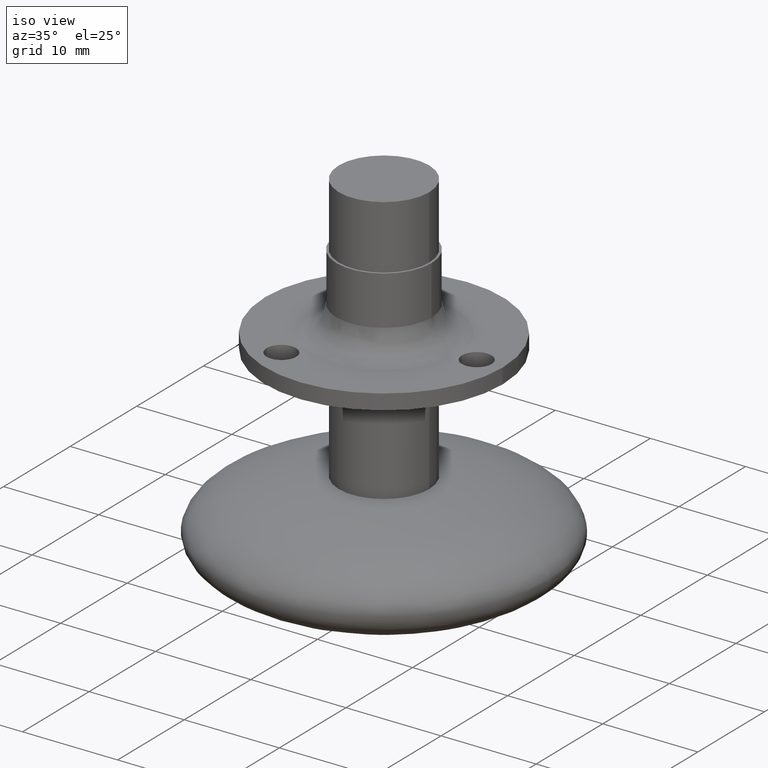
[diagram: clean part render]
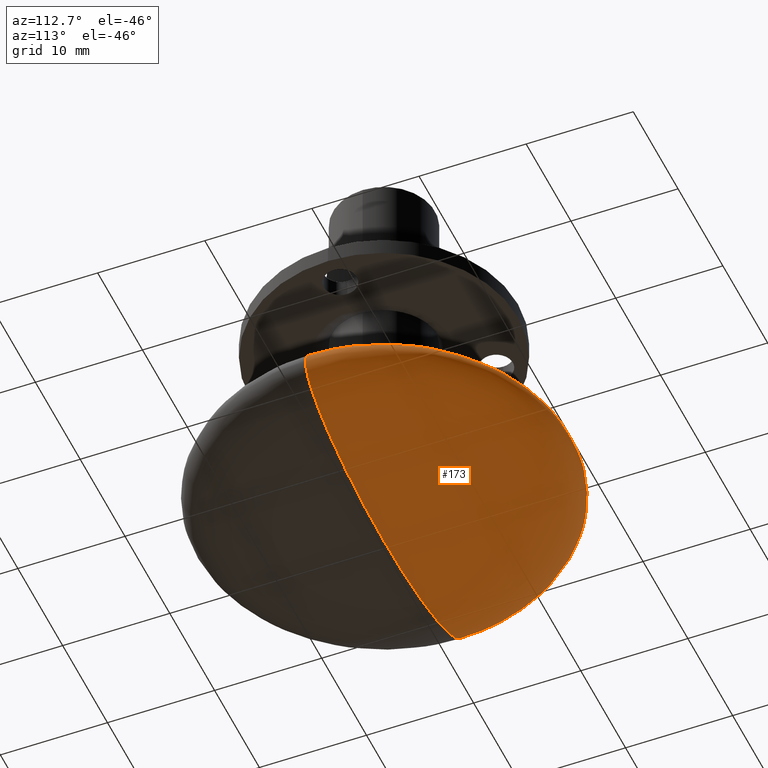
[diagram: tour spotlight — one face highlighted and labeled with its STEP entity id]
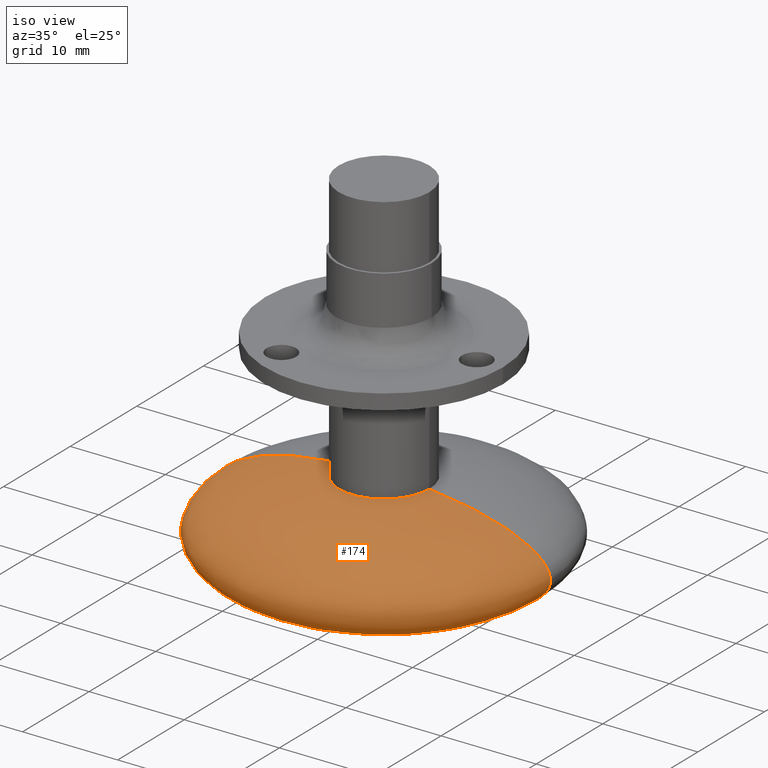
[diagram: tour spotlight — one face highlighted and labeled with its STEP entity id]
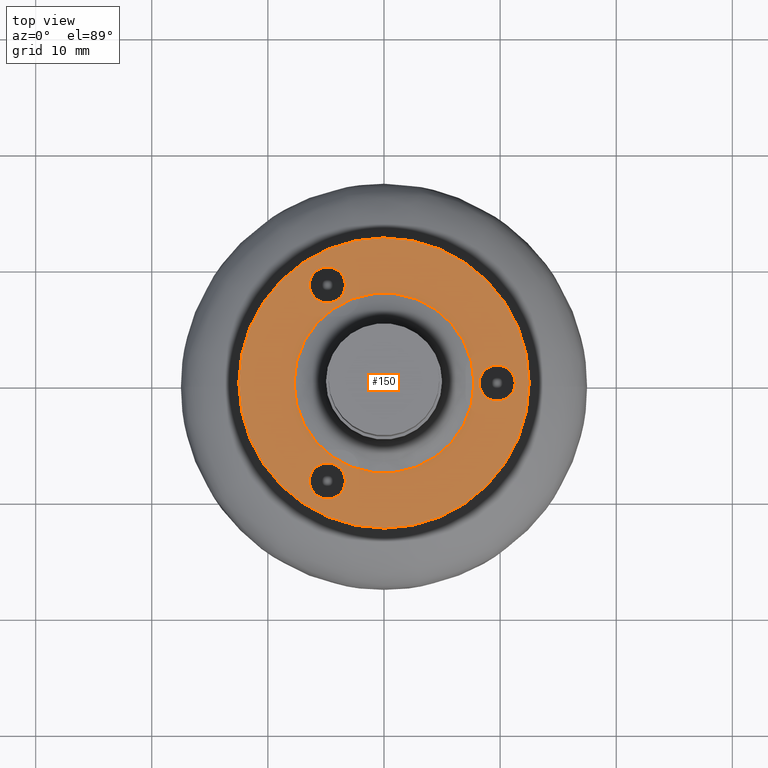
[diagram: tour spotlight — one face highlighted and labeled with its STEP entity id]
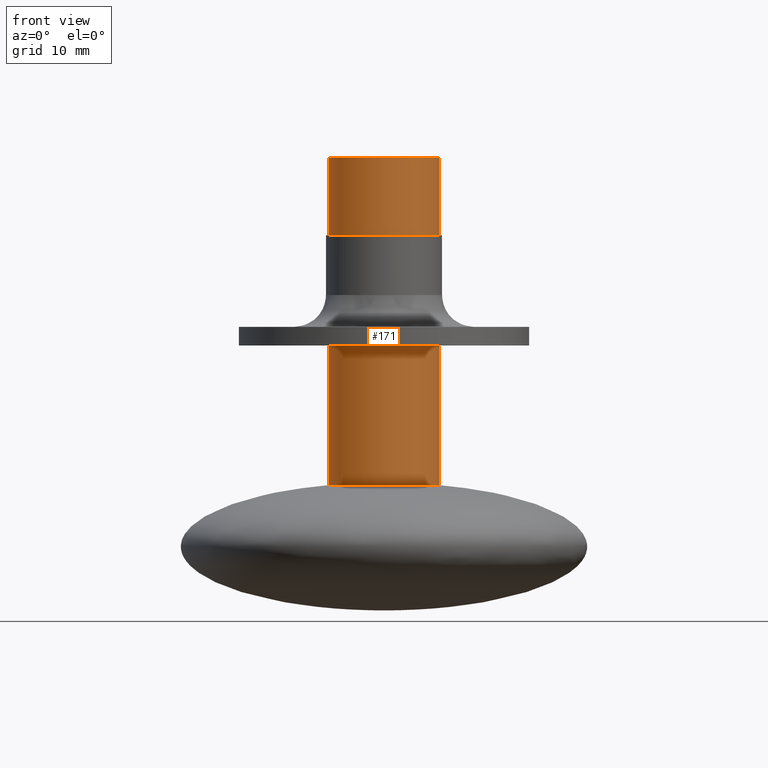
[diagram: tour spotlight — one face highlighted and labeled with its STEP entity id]
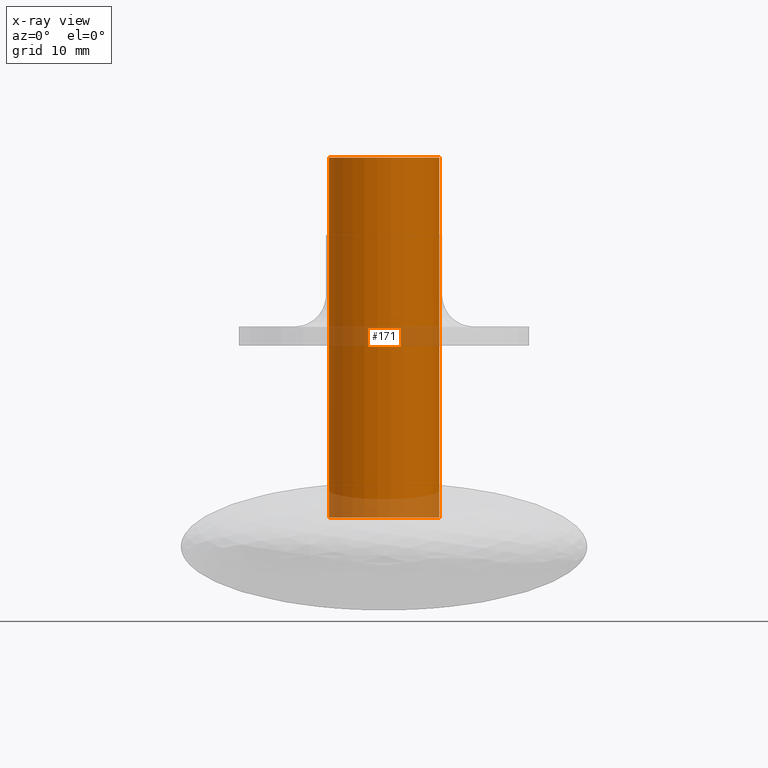
[diagram: x-ray of the same camera — body ghosted, this tour face saturated]
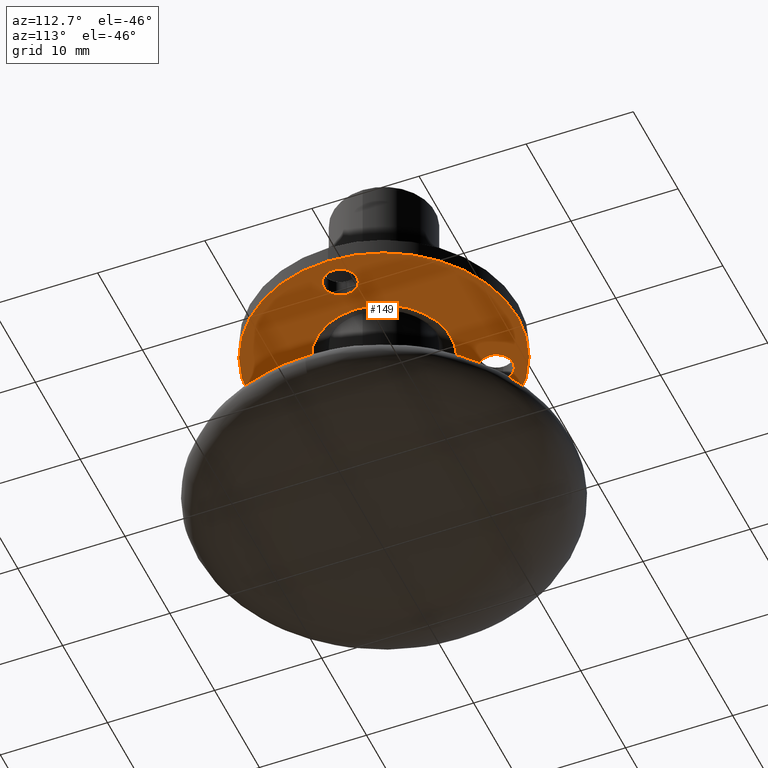
[diagram: tour spotlight — one face highlighted and labeled with its STEP entity id]
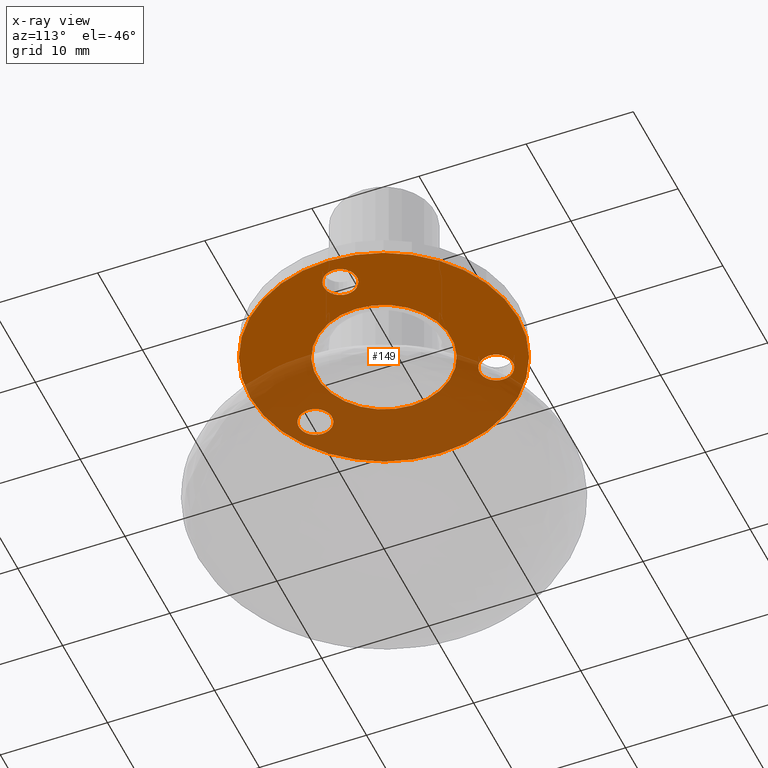
[diagram: x-ray of the same camera — body ghosted, this tour face saturated]
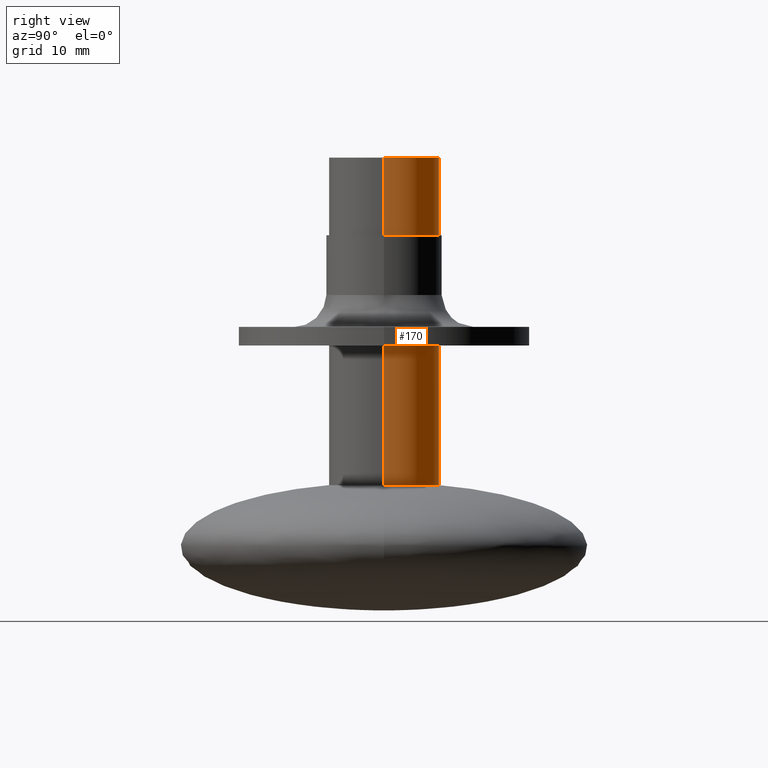
[diagram: tour spotlight — one face highlighted and labeled with its STEP entity id]
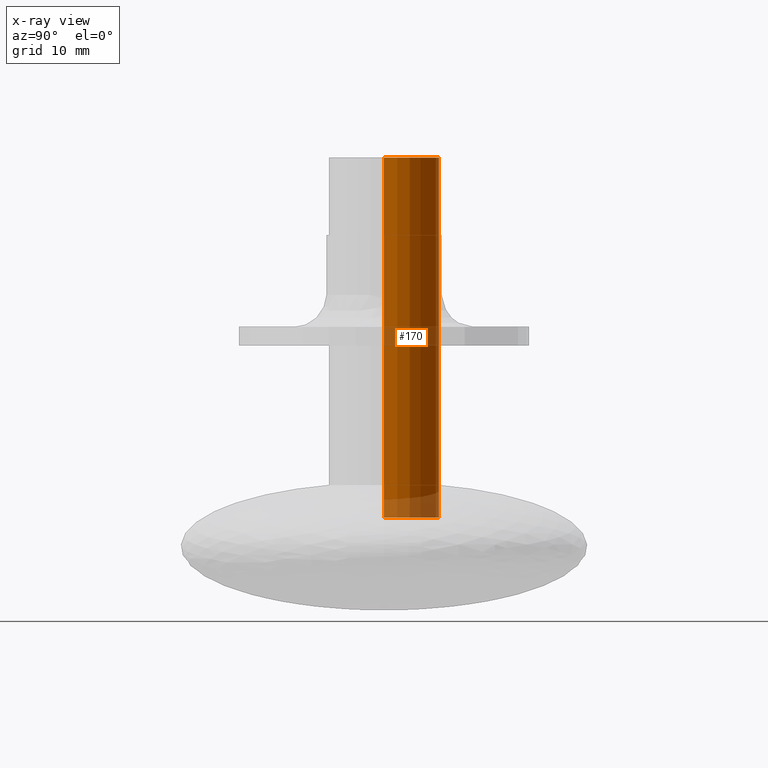
[diagram: x-ray of the same camera — body ghosted, this tour face saturated]
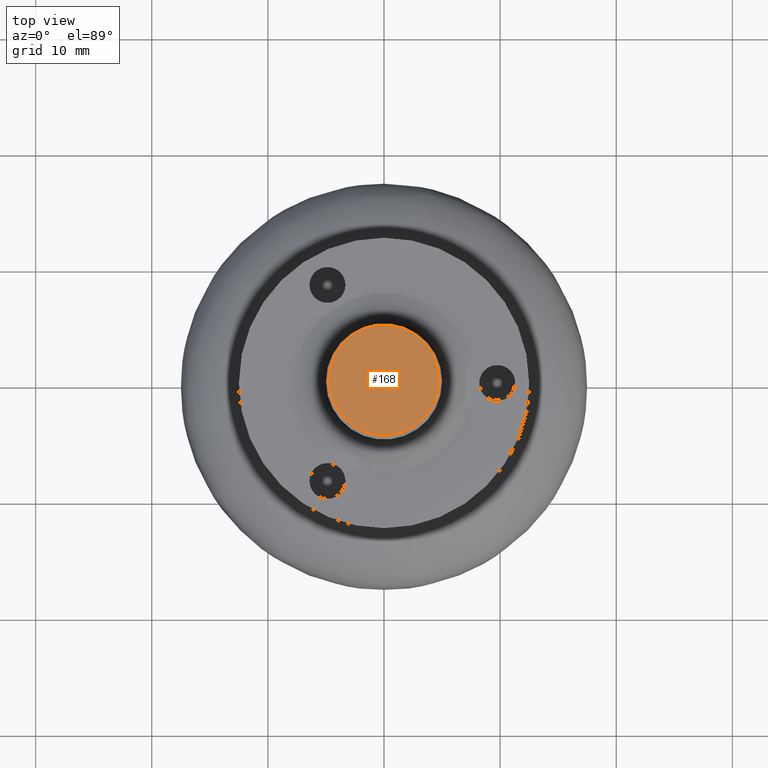
[diagram: tour spotlight — one face highlighted and labeled with its STEP entity id]
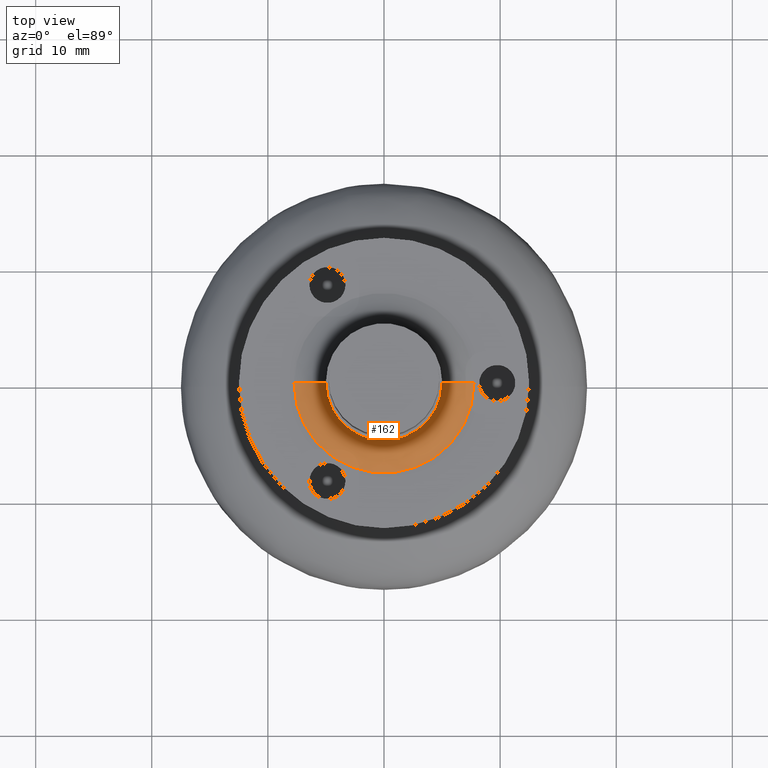
[diagram: tour spotlight — one face highlighted and labeled with its STEP entity id]
A machine part: a face-by-face anatomy tour. The part has 28 B-rep faces; the first image is the clean iso view, then the 8 largest visible faces are spotlighted one at a time (largest first), each with its STEP entity span.

Face 1 — auxiliary view, entity #173. In plain terms, the highlighted face is a freeform B-spline surface patch.
Definition (entity closure, byte-faithful):
#173=ADVANCED_FACE('',(#427),#426,.F.);
#426=( BOUNDED_SURFACE() B_SPLINE_SURFACE( 2,2,((#679,#680,#681,#682,#683),(#684,#685,#686,#687,#688),(#689,#690,#691,#692,#693),(#694,#695,#696,#697,#698),(#699,#700,#701,#702,#703)), .UNSPECIFIED.,.F.,.F.,.F.) B_SPLINE_SURFACE_WITH_KNOTS((3,2,3),(3,2,3),(4.98800822050E+00,6.26703740133E+00,7.85398163397E+00),(0.00000000000E+00,1.57079632679E+00,3.14159265359E+00), .UNSPECIFIED. ) GEOMETRIC_REPRESENTATION_ITEM() RATIONAL_B_SPLINE_SURFACE(((1.00000000000E+00,7.07106781187E-01,1.00000000000E+00,7.07106781187E-01,1.00000000000E+00),(7.54113331129E-01,5.33238650225E-01,7.54113331129E-01,5.33238650225E-01,7.54113331129E-01),(1.00000000000E+00,7.07106781187E-01,1.00000000000E+00,7.07106781187E-01,1.00000000000E+00),(7.54113331129E-01,5.33238650225E-01,7.54113331129E-01,5.33238650225E-01,7.54113331129E-01),(1.00000000000E+00,7.07106781187E-01,1.00000000000E+00,7.07106781187E-01,1.00000000000E+00))) REPRESENTATION_ITEM('') SURFACE() );
#427=FACE_OUTER_BOUND('',#704,.T.);
#679=CARTESIAN_POINT('',(-4.76250000000E+00,0.00000000000E+00,-2.82075872680E+01));
#680=CARTESIAN_POINT('',(-4.76250000000E+00,4.76250000000E+00,-2.82075872680E+01));
#681=CARTESIAN_POINT('',(0.00000000000E+00,4.76250000000E+00,-2.82075872680E+01));
#682=CARTESIAN_POINT('',(4.76250000000E+00,4.76250000000E+00,-2.82075872680E+01));
#683=CARTESIAN_POINT('',(4.76250000000E+00,0.00000000000E+00,-2.82075872680E+01));
#684=CARTESIAN_POINT('',(-1.94277260901E+01,0.00000000000E+00,-2.95111121561E+01));
#685=CARTESIAN_POINT('',(-1.94277260901E+01,1.94277260901E+01,-2.95111121561E+01));
#686=CARTESIAN_POINT('',(0.00000000000E+00,1.94277260901E+01,-2.95111121561E+01));
#687=CARTESIAN_POINT('',(1.94277260901E+01,1.94277260901E+01,-2.95111121561E+01));
#688=CARTESIAN_POINT('',(1.94277260901E+01,0.00000000000E+00,-2.95111121561E+01));
#689=CARTESIAN_POINT('',(-1.73340872775E+01,0.00000000000E+00,-3.42555560781E+01));
#690=CARTESIAN_POINT('',(-1.73340872775E+01,1.73340872775E+01,-3.42555560781E+01));
#691=CARTESIAN_POINT('',(0.00000000000E+00,1.73340872775E+01,-3.42555560781E+01));
#692=CARTESIAN_POINT('',(1.73340872775E+01,1.73340872775E+01,-3.42555560781E+01));
#693=CARTESIAN_POINT('',(1.73340872775E+01,0.00000000000E+00,-3.42555560781E+01));
#694=CARTESIAN_POINT('',(-1.52404484648E+01,0.00000000000E+00,-3.90000000000E+01));
#695=CARTESIAN_POINT('',(-1.52404484648E+01,1.52404484648E+01,-3.90000000000E+01));
#696=CARTESIAN_POINT('',(0.00000000000E+00,1.52404484648E+01,-3.90000000000E+01));
#697=CARTESIAN_POINT('',(1.52404484648E+01,1.52404484648E+01,-3.90000000000E+01));
#698=CARTESIAN_POINT('',(1.52404484648E+01,0.00000000000E+00,-3.90000000000E+01));
#699=CARTESIAN_POINT('',(-5.26605533268E-14,0.00000000000E+00,-3.90000000000E+01));
#700=CARTESIAN_POINT('',(-5.26605533268E-14,5.26605533268E-14,-3.90000000000E+01));
#701=CARTESIAN_POINT('',(0.00000000000E+00,5.26605533268E-14,-3.90000000000E+01));
#702=CARTESIAN_POINT('',(5.26605533268E-14,5.26605533268E-14,-3.90000000000E+01));
#703=CARTESIAN_POINT('',(5.26605533268E-14,0.00000000000E+00,-3.90000000000E+01));
#704=EDGE_LOOP('',(#843,#844,#845));
#843=ORIENTED_EDGE('',*,*,#909,.F.);
#844=ORIENTED_EDGE('',*,*,#910,.T.);
#845=ORIENTED_EDGE('',*,*,#911,.T.);
#909=EDGE_CURVE('',#1261,#1262,#1263,.T.);
#910=EDGE_CURVE('',#1261,#1269,#1270,.T.);
#911=EDGE_CURVE('',#1269,#1262,#1276,.T.);
#1261=VERTEX_POINT('',#1510);
#1262=VERTEX_POINT('',#1511);
#1263=(BOUNDED_CURVE() B_SPLINE_CURVE(2,(#1512,#1513,#1514,#1515,#1516),.UNSPECIFIED.,.F.,.F.) B_SPLINE_CURVE_WITH_KNOTS((3,2,3),(-1.29517708668E+00,-1.61479058479E-02,1.57079632679E+00),.UNSPECIFIED.) CURVE() GEOMETRIC_REPRESENTATION_ITEM() RATIONAL_B_SPLINE_CURVE((1.00000000000E+00,7.54113331129E-01,1.00000000000E+00,7.54113331129E-01,1.00000000000E+00)) REPRESENTATION_ITEM('') );
#1269=VERTEX_POINT('',#1517);
#1270=CIRCLE('',#1521,4.76250000000E+00);
#1276=(BOUNDED_CURVE() B_SPLINE_CURVE(2,(#1522,#1523,#1524,#1525,#1526),.UNSPECIFIED.,.F.,.F.) B_SPLINE_CURVE_WITH_KNOTS((3,2,3),(4.98800822050E+00,6.26703740133E+00,7.85398163397E+00),.UNSPECIFIED.) CURVE() GEOMETRIC_REPRESENTATION_ITEM() RATIONAL_B_SPLINE_CURVE((1.00000000000E+00,7.54113331129E-01,1.00000000000E+00,7.54113331129E-01,1.00000000000E+00)) REPRESENTATION_ITEM('') );
#1510=CARTESIAN_POINT('',(-4.76250000000E+00,0.00000000000E+00,-2.82075872680E+01));
#1511=CARTESIAN_POINT('',(0.00000000000E+00,0.00000000000E+00,-3.90000000000E+01));
#1512=CARTESIAN_POINT('',(-4.76250000000E+00,0.00000000000E+00,-2.82075872680E+01));
#1513=CARTESIAN_POINT('',(-1.94277260901E+01,0.00000000000E+00,-2.95111121561E+01));
#1514=CARTESIAN_POINT('',(-1.73340872775E+01,0.00000000000E+00,-3.42555560781E+01));
#1515=CARTESIAN_POINT('',(-1.52404484648E+01,0.00000000000E+00,-3.90000000000E+01));
#1516=CARTESIAN_POINT('',(-1.74506405420E-15,0.00000000000E+00,-3.90000000000E+01));
#1517=CARTESIAN_POINT('',(4.76250000000E+00,2.96059473233E-16,-2.82075872680E+01));
#1518=CARTESIAN_POINT('',(0.00000000000E+00,0.00000000000E+00,-2.82075872680E+01));
#1519=DIRECTION('',(-0.00000000000E+00,0.00000000000E+00,-1.00000000000E+00));
#1520=DIRECTION('',(-1.00000000000E+00,-1.22460635382E-16,0.00000000000E+00));
#1521=AXIS2_PLACEMENT_3D('',#1518,#1519,#1520);
#1522=CARTESIAN_POINT('',(4.76250000000E+00,0.00000000000E+00,-2.82075872680E+01));
#1523=CARTESIAN_POINT('',(1.94277260901E+01,0.00000000000E+00,-2.95111121561E+01));
#1524=CARTESIAN_POINT('',(1.73340872775E+01,0.00000000000E+00,-3.42555560781E+01));
#1525=CARTESIAN_POINT('',(1.52404484648E+01,0.00000000000E+00,-3.90000000000E+01));
#1526=CARTESIAN_POINT('',(5.26605533268E-14,0.00000000000E+00,-3.90000000000E+01));

Face 2 — iso view, entity #174. In plain terms, the highlighted face is a freeform B-spline surface patch.
Definition (entity closure, byte-faithful):
#174=ADVANCED_FACE('',(#437),#436,.F.);
#436=( BOUNDED_SURFACE() B_SPLINE_SURFACE( 2,2,((#705,#706,#707,#708,#709),(#710,#711,#712,#713,#714),(#715,#716,#717,#718,#719),(#720,#721,#722,#723,#724),(#725,#726,#727,#728,#729)), .UNSPECIFIED.,.F.,.F.,.F.) B_SPLINE_SURFACE_WITH_KNOTS((3,2,3),(3,2,3),(4.98800822050E+00,6.26703740133E+00,7.85398163397E+00),(3.14159265359E+00,4.71238898038E+00,6.28318530718E+00), .UNSPECIFIED. ) GEOMETRIC_REPRESENTATION_ITEM() RATIONAL_B_SPLINE_SURFACE(((1.00000000000E+00,7.07106781187E-01,1.00000000000E+00,7.07106781187E-01,1.00000000000E+00),(7.54113331129E-01,5.33238650225E-01,7.54113331129E-01,5.33238650225E-01,7.54113331129E-01),(1.00000000000E+00,7.07106781187E-01,1.00000000000E+00,7.07106781187E-01,1.00000000000E+00),(7.54113331129E-01,5.33238650225E-01,7.54113331129E-01,5.33238650225E-01,7.54113331129E-01),(1.00000000000E+00,7.07106781187E-01,1.00000000000E+00,7.07106781187E-01,1.00000000000E+00))) REPRESENTATION_ITEM('') SURFACE() );
#437=FACE_OUTER_BOUND('',#730,.T.);
#705=CARTESIAN_POINT('',(4.76250000000E+00,0.00000000000E+00,-2.82075872680E+01));
#706=CARTESIAN_POINT('',(4.76250000000E+00,-4.76250000000E+00,-2.82075872680E+01));
#707=CARTESIAN_POINT('',(0.00000000000E+00,-4.76250000000E+00,-2.82075872680E+01));
#708=CARTESIAN_POINT('',(-4.76250000000E+00,-4.76250000000E+00,-2.82075872680E+01));
#709=CARTESIAN_POINT('',(-4.76250000000E+00,0.00000000000E+00,-2.82075872680E+01));
#710=CARTESIAN_POINT('',(1.94277260901E+01,0.00000000000E+00,-2.95111121561E+01));
#711=CARTESIAN_POINT('',(1.94277260901E+01,-1.94277260901E+01,-2.95111121561E+01));
#712=CARTESIAN_POINT('',(0.00000000000E+00,-1.94277260901E+01,-2.95111121561E+01));
#713=CARTESIAN_POINT('',(-1.94277260901E+01,-1.94277260901E+01,-2.95111121561E+01));
#714=CARTESIAN_POINT('',(-1.94277260901E+01,0.00000000000E+00,-2.95111121561E+01));
#715=CARTESIAN_POINT('',(1.73340872775E+01,0.00000000000E+00,-3.42555560781E+01));
#716=CARTESIAN_POINT('',(1.73340872775E+01,-1.73340872775E+01,-3.42555560781E+01));
#717=CARTESIAN_POINT('',(0.00000000000E+00,-1.73340872775E+01,-3.42555560781E+01));
#718=CARTESIAN_POINT('',(-1.73340872775E+01,-1.73340872775E+01,-3.42555560781E+01));
#719=CARTESIAN_POINT('',(-1.73340872775E+01,0.00000000000E+00,-3.42555560781E+01));
#720=CARTESIAN_POINT('',(1.52404484648E+01,0.00000000000E+00,-3.90000000000E+01));
#721=CARTESIAN_POINT('',(1.52404484648E+01,-1.52404484648E+01,-3.90000000000E+01));
#722=CARTESIAN_POINT('',(0.00000000000E+00,-1.52404484648E+01,-3.90000000000E+01));
#723=CARTESIAN_POINT('',(-1.52404484648E+01,-1.52404484648E+01,-3.90000000000E+01));
#724=CARTESIAN_POINT('',(-1.52404484648E+01,0.00000000000E+00,-3.90000000000E+01));
#725=CARTESIAN_POINT('',(5.26605533268E-14,0.00000000000E+00,-3.90000000000E+01));
#726=CARTESIAN_POINT('',(5.26605533268E-14,-5.26605533268E-14,-3.90000000000E+01));
#727=CARTESIAN_POINT('',(0.00000000000E+00,-5.26605533268E-14,-3.90000000000E+01));
#728=CARTESIAN_POINT('',(-5.26605533268E-14,-5.26605533268E-14,-3.90000000000E+01));
#729=CARTESIAN_POINT('',(-5.26605533268E-14,0.00000000000E+00,-3.90000000000E+01));
#730=EDGE_LOOP('',(#846,#847,#848));
#846=ORIENTED_EDGE('',*,*,#912,.T.);
#847=ORIENTED_EDGE('',*,*,#909,.T.);
#848=ORIENTED_EDGE('',*,*,#911,.F.);
#909=EDGE_CURVE('',#1261,#1262,#1263,.T.);
#911=EDGE_CURVE('',#1269,#1262,#1276,.T.);
#912=EDGE_CURVE('',#1269,#1261,#1282,.T.);
#1261=VERTEX_POINT('',#1510);
#1262=VERTEX_POINT('',#1511);
#1263=(BOUNDED_CURVE() B_SPLINE_CURVE(2,(#1512,#1513,#1514,#1515,#1516),.UNSPECIFIED.,.F.,.F.) B_SPLINE_CURVE_WITH_KNOTS((3,2,3),(-1.29517708668E+00,-1.61479058479E-02,1.57079632679E+00),.UNSPECIFIED.) CURVE() GEOMETRIC_REPRESENTATION_ITEM() RATIONAL_B_SPLINE_CURVE((1.00000000000E+00,7.54113331129E-01,1.00000000000E+00,7.54113331129E-01,1.00000000000E+00)) REPRESENTATION_ITEM('') );
#1269=VERTEX_POINT('',#1517);
#1276=(BOUNDED_CURVE() B_SPLINE_CURVE(2,(#1522,#1523,#1524,#1525,#1526),.UNSPECIFIED.,.F.,.F.) B_SPLINE_CURVE_WITH_KNOTS((3,2,3),(4.98800822050E+00,6.26703740133E+00,7.85398163397E+00),.UNSPECIFIED.) CURVE() GEOMETRIC_REPRESENTATION_ITEM() RATIONAL_B_SPLINE_CURVE((1.00000000000E+00,7.54113331129E-01,1.00000000000E+00,7.54113331129E-01,1.00000000000E+00)) REPRESENTATION_ITEM('') );
#1282=CIRCLE('',#1530,4.76250000000E+00);
#1510=CARTESIAN_POINT('',(-4.76250000000E+00,0.00000000000E+00,-2.82075872680E+01));
#1511=CARTESIAN_POINT('',(0.00000000000E+00,0.00000000000E+00,-3.90000000000E+01));
#1512=CARTESIAN_POINT('',(-4.76250000000E+00,0.00000000000E+00,-2.82075872680E+01));
#1513=CARTESIAN_POINT('',(-1.94277260901E+01,0.00000000000E+00,-2.95111121561E+01));
#1514=CARTESIAN_POINT('',(-1.73340872775E+01,0.00000000000E+00,-3.42555560781E+01));
#1515=CARTESIAN_POINT('',(-1.52404484648E+01,0.00000000000E+00,-3.90000000000E+01));
#1516=CARTESIAN_POINT('',(-1.74506405420E-15,0.00000000000E+00,-3.90000000000E+01));
#1517=CARTESIAN_POINT('',(4.76250000000E+00,2.96059473233E-16,-2.82075872680E+01));
#1522=CARTESIAN_POINT('',(4.76250000000E+00,0.00000000000E+00,-2.82075872680E+01));
#1523=CARTESIAN_POINT('',(1.94277260901E+01,0.00000000000E+00,-2.95111121561E+01));
#1524=CARTESIAN_POINT('',(1.73340872775E+01,0.00000000000E+00,-3.42555560781E+01));
#1525=CARTESIAN_POINT('',(1.52404484648E+01,0.00000000000E+00,-3.90000000000E+01));
#1526=CARTESIAN_POINT('',(5.26605533268E-14,0.00000000000E+00,-3.90000000000E+01));
#1527=CARTESIAN_POINT('',(0.00000000000E+00,0.00000000000E+00,-2.82075872680E+01));
#1528=DIRECTION('',(-0.00000000000E+00,0.00000000000E+00,-1.00000000000E+00));
#1529=DIRECTION('',(-1.00000000000E+00,-1.22460635382E-16,0.00000000000E+00));
#1530=AXIS2_PLACEMENT_3D('',#1527,#1528,#1529);

Face 3 — top view, entity #150. In plain terms, the highlighted planar face has unit normal (0, 0, 1).
Definition (entity closure, byte-faithful):
#150=ADVANCED_FACE('',(#192,#193,#194,#195,#196),#191,.T.);
#191=PLANE('',#478);
#192=FACE_OUTER_BOUND('',#479,.T.);
#193=FACE_BOUND('',#480,.T.);
#194=FACE_BOUND('',#481,.T.);
#195=FACE_BOUND('',#482,.T.);
#196=FACE_BOUND('',#483,.T.);
#475=CARTESIAN_POINT('',(-1.62500000000E+01,-2.59807621135E+01,-1.45847590000E+01));
#476=DIRECTION('',(0.00000000000E+00,0.00000000000E+00,1.00000000000E+00));
#477=DIRECTION('',(1.00000000000E+00,0.00000000000E+00,0.00000000000E+00));
#478=AXIS2_PLACEMENT_3D('',#475,#476,#477);
#479=EDGE_LOOP('',(#751,#752));
#480=EDGE_LOOP('',(#753,#754));
#481=EDGE_LOOP('',(#755,#756));
#482=EDGE_LOOP('',(#757,#758));
#483=EDGE_LOOP('',(#759,#760));
#751=ORIENTED_EDGE('',*,*,#867,.F.);
#752=ORIENTED_EDGE('',*,*,#868,.F.);
#753=ORIENTED_EDGE('',*,*,#869,.F.);
#754=ORIENTED_EDGE('',*,*,#870,.F.);
#755=ORIENTED_EDGE('',*,*,#871,.T.);
#756=ORIENTED_EDGE('',*,*,#872,.T.);
#757=ORIENTED_EDGE('',*,*,#873,.F.);
#758=ORIENTED_EDGE('',*,*,#874,.F.);
#759=ORIENTED_EDGE('',*,*,#875,.F.);
#760=ORIENTED_EDGE('',*,*,#876,.F.);
#867=EDGE_CURVE('',#985,#986,#987,.T.);
#868=EDGE_CURVE('',#986,#985,#993,.T.);
#869=EDGE_CURVE('',#999,#1000,#1001,.T.);
#870=EDGE_CURVE('',#1000,#999,#1007,.T.);
#871=EDGE_CURVE('',#1013,#1014,#1015,.T.);
#872=EDGE_CURVE('',#1014,#1013,#1021,.T.);
#873=EDGE_CURVE('',#1027,#1028,#1029,.T.);
#874=EDGE_CURVE('',#1028,#1027,#1035,.T.);
#875=EDGE_CURVE('',#1041,#1042,#1043,.T.);
#876=EDGE_CURVE('',#1042,#1041,#1049,.T.);
#985=VERTEX_POINT('',#1350);
#986=VERTEX_POINT('',#1351);
#987=CIRCLE('',#1355,1.25000000000E+01);
#993=CIRCLE('',#1359,1.25000000000E+01);
#999=VERTEX_POINT('',#1360);
#1000=VERTEX_POINT('',#1361);
#1001=CIRCLE('',#1365,1.55000000000E+00);
#1007=CIRCLE('',#1369,1.55000000000E+00);
#1013=VERTEX_POINT('',#1370);
#1014=VERTEX_POINT('',#1371);
#1015=CIRCLE('',#1375,7.75000000000E+00);
#1021=CIRCLE('',#1379,7.75000000000E+00);
#1027=VERTEX_POINT('',#1380);
#1028=VERTEX_POINT('',#1381);
#1029=CIRCLE('',#1385,1.55000000000E+00);
#1035=CIRCLE('',#1389,1.55000000000E+00);
#1041=VERTEX_POINT('',#1390);
#1042=VERTEX_POINT('',#1391);
#1043=CIRCLE('',#1395,1.55000000000E+00);
#1049=CIRCLE('',#1399,1.55000000000E+00);
#1350=CARTESIAN_POINT('',(1.25000000000E+01,0.00000000000E+00,-1.45847590000E+01));
#1351=CARTESIAN_POINT('',(-1.25000000000E+01,0.00000000000E+00,-1.45847590000E+01));
#1352=CARTESIAN_POINT('',(0.00000000000E+00,0.00000000000E+00,-1.45847590000E+01));
#1353=DIRECTION('',(-0.00000000000E+00,0.00000000000E+00,-1.00000000000E+00));
#1354=DIRECTION('',(-1.00000000000E+00,-1.22460635382E-16,0.00000000000E+00));
#1355=AXIS2_PLACEMENT_3D('',#1352,#1353,#1354);
#1356=CARTESIAN_POINT('',(0.00000000000E+00,0.00000000000E+00,-1.45847590000E+01));
#1357=DIRECTION('',(-0.00000000000E+00,0.00000000000E+00,-1.00000000000E+00));
#1358=DIRECTION('',(-1.00000000000E+00,-1.22460635382E-16,0.00000000000E+00));
#1359=AXIS2_PLACEMENT_3D('',#1356,#1357,#1358);
#1360=CARTESIAN_POINT('',(1.13000000000E+01,2.96059473233E-16,-1.45847590000E+01));
#1361=CARTESIAN_POINT('',(8.20000000000E+00,0.00000000000E+00,-1.45847590000E+01));
#1362=CARTESIAN_POINT('',(9.75000000000E+00,0.00000000000E+00,-1.45847590000E+01));
#1363=DIRECTION('',(0.00000000000E+00,0.00000000000E+00,1.00000000000E+00));
#1364=DIRECTION('',(-1.00000000000E+00,-1.22460635382E-16,0.00000000000E+00));
#1365=AXIS2_PLACEMENT_3D('',#1362,#1363,#1364);
#1366=CARTESIAN_POINT('',(9.75000000000E+00,0.00000000000E+00,-1.45847590000E+01));
#1367=DIRECTION('',(0.00000000000E+00,0.00000000000E+00,1.00000000000E+00));
#1368=DIRECTION('',(-1.00000000000E+00,-1.22460635382E-16,0.00000000000E+00));
#1369=AXIS2_PLACEMENT_3D('',#1366,#1367,#1368);
#1370=CARTESIAN_POINT('',(-7.75000000000E+00,0.00000000000E+00,-1.45847590000E+01));
#1371=CARTESIAN_POINT('',(7.75000000000E+00,8.88178419700E-16,-1.45847590000E+01));
#1372=CARTESIAN_POINT('',(0.00000000000E+00,0.00000000000E+00,-1.45847590000E+01));
#1373=DIRECTION('',(-0.00000000000E+00,0.00000000000E+00,-1.00000000000E+00));
#1374=DIRECTION('',(-1.00000000000E+00,-1.22460635382E-16,0.00000000000E+00));
#1375=AXIS2_PLACEMENT_3D('',#1372,#1373,#1374);
#1376=CARTESIAN_POINT('',(0.00000000000E+00,0.00000000000E+00,-1.45847590000E+01));
#1377=DIRECTION('',(-0.00000000000E+00,0.00000000000E+00,-1.00000000000E+00));
#1378=DIRECTION('',(-1.00000000000E+00,-1.22460635382E-16,0.00000000000E+00));
#1379=AXIS2_PLACEMENT_3D('',#1376,#1377,#1378);
#1380=CARTESIAN_POINT('',(-3.32500000000E+00,-8.44374800000E+00,-1.45847590000E+01));
#1381=CARTESIAN_POINT('',(-6.42500000000E+00,-8.44374800000E+00,-1.45847590000E+01));
#1382=CARTESIAN_POINT('',(-4.87500000000E+00,-8.44374800000E+00,-1.45847590000E+01));
#1383=DIRECTION('',(0.00000000000E+00,0.00000000000E+00,1.00000000000E+00));
#1384=DIRECTION('',(-1.00000000000E+00,-1.22460635382E-16,0.00000000000E+00));
#1385=AXIS2_PLACEMENT_3D('',#1382,#1383,#1384);
#1386=CARTESIAN_POINT('',(-4.87500000000E+00,-8.44374800000E+00,-1.45847590000E+01));
#1387=DIRECTION('',(0.00000000000E+00,0.00000000000E+00,1.00000000000E+00));
#1388=DIRECTION('',(-1.00000000000E+00,-1.22460635382E-16,0.00000000000E+00));
#1389=AXIS2_PLACEMENT_3D('',#1386,#1387,#1388);
#1390=CARTESIAN_POINT('',(-3.32500000000E+00,8.44374700000E+00,-1.45847590000E+01));
#1391=CARTESIAN_POINT('',(-6.42500000000E+00,8.44374700000E+00,-1.45847590000E+01));
#1392=CARTESIAN_POINT('',(-4.87500000000E+00,8.44374700000E+00,-1.45847590000E+01));
#1393=DIRECTION('',(0.00000000000E+00,0.00000000000E+00,1.00000000000E+00));
#1394=DIRECTION('',(-1.00000000000E+00,-1.22460635382E-16,0.00000000000E+00));
#1395=AXIS2_PLACEMENT_3D('',#1392,#1393,#1394);
#1396=CARTESIAN_POINT('',(-4.87500000000E+00,8.44374700000E+00,-1.45847590000E+01));
#1397=DIRECTION('',(0.00000000000E+00,0.00000000000E+00,1.00000000000E+00));
#1398=DIRECTION('',(-1.00000000000E+00,-1.22460635382E-16,0.00000000000E+00));
#1399=AXIS2_PLACEMENT_3D('',#1396,#1397,#1398);

Face 4 — front view, entity #171. An x-ray twin of the same camera follows (body ghosted, this face saturated) — the face is partly hidden behind the body. In plain terms, the highlighted cylindrical surface (partial cylindrical patch) has radius 4.7625 mm, axis along (0, 0, 1).
Definition (entity closure, byte-faithful):
#171=ADVANCED_FACE('',(#407),#406,.T.);
#406=CYLINDRICAL_SURFACE('',#672,4.76250000000E+00);
#407=FACE_OUTER_BOUND('',#673,.T.);
#669=CARTESIAN_POINT('',(0.00000000000E+00,0.00000000000E+00,0.00000000000E+00));
#670=DIRECTION('',(-0.00000000000E+00,-0.00000000000E+00,1.00000000000E+00));
#671=DIRECTION('',(1.00000000000E+00,-0.00000000000E+00,-0.00000000000E+00));
#672=AXIS2_PLACEMENT_3D('',#669,#670,#671);
#673=EDGE_LOOP('',(#837,#838,#839,#840));
#837=ORIENTED_EDGE('',*,*,#904,.F.);
#838=ORIENTED_EDGE('',*,*,#905,.T.);
#839=ORIENTED_EDGE('',*,*,#901,.T.);
#840=ORIENTED_EDGE('',*,*,#906,.F.);
#901=EDGE_CURVE('',#1207,#1208,#1209,.T.);
#904=EDGE_CURVE('',#1222,#1221,#1229,.T.);
#905=EDGE_CURVE('',#1222,#1207,#1235,.T.);
#906=EDGE_CURVE('',#1221,#1208,#1241,.T.);
#1207=VERTEX_POINT('',#1476);
#1208=VERTEX_POINT('',#1477);
#1209=CIRCLE('',#1481,4.76250000000E+00);
#1221=VERTEX_POINT('',#1486);
#1222=VERTEX_POINT('',#1487);
#1229=CIRCLE('',#1495,4.76250000000E+00);
#1235=(BOUNDED_CURVE() B_SPLINE_CURVE(1,(#1496,#1497),.UNSPECIFIED.,.F.,.F.) B_SPLINE_CURVE_WITH_KNOTS((2,2),(8.33333335810E-02,9.16666666255E-01),.UNSPECIFIED.) CURVE() GEOMETRIC_REPRESENTATION_ITEM() RATIONAL_B_SPLINE_CURVE((1.00000000000E+00,1.00000000000E+00)) REPRESENTATION_ITEM('') );
#1241=(BOUNDED_CURVE() B_SPLINE_CURVE(1,(#1498,#1499),.UNSPECIFIED.,.F.,.F.) B_SPLINE_CURVE_WITH_KNOTS((2,2),(8.33333333333E-02,9.16666666667E-01),.UNSPECIFIED.) CURVE() GEOMETRIC_REPRESENTATION_ITEM() RATIONAL_B_SPLINE_CURVE((7.50000000000E-01,7.50000000000E-01)) REPRESENTATION_ITEM('') );
#1476=CARTESIAN_POINT('',(4.76250000000E+00,2.96059473233E-16,0.00000000000E+00));
#1477=CARTESIAN_POINT('',(-4.76250000000E+00,0.00000000000E+00,0.00000000000E+00));
#1478=CARTESIAN_POINT('',(0.00000000000E+00,0.00000000000E+00,0.00000000000E+00));
#1479=DIRECTION('',(-0.00000000000E+00,0.00000000000E+00,-1.00000000000E+00));
#1480=DIRECTION('',(-1.00000000000E+00,-1.22460635382E-16,0.00000000000E+00));
#1481=AXIS2_PLACEMENT_3D('',#1478,#1479,#1480);
#1486=CARTESIAN_POINT('',(-4.76250000000E+00,0.00000000000E+00,-3.10000000000E+01));
#1487=CARTESIAN_POINT('',(4.76250000000E+00,2.96059473233E-16,-3.10000000000E+01));
#1492=CARTESIAN_POINT('',(0.00000000000E+00,0.00000000000E+00,-3.10000000000E+01));
#1493=DIRECTION('',(-0.00000000000E+00,0.00000000000E+00,-1.00000000000E+00));
#1494=DIRECTION('',(-1.00000000000E+00,-1.22460635382E-16,0.00000000000E+00));
#1495=AXIS2_PLACEMENT_3D('',#1492,#1493,#1494);
#1496=CARTESIAN_POINT('',(4.76250000000E+00,0.00000000000E+00,-3.09999999908E+01));
#1497=CARTESIAN_POINT('',(4.76250000000E+00,0.00000000000E+00,-1.52996921798E-08));
#1498=CARTESIAN_POINT('',(-4.76250000000E+00,-2.96059473233E-16,-3.10000000000E+01));
#1499=CARTESIAN_POINT('',(-4.76250000000E+00,-2.96059473233E-16,1.18423789293E-15));

Face 5 — auxiliary view, entity #149. An x-ray twin of the same camera follows (body ghosted, this face saturated) — the face is partly hidden behind the body. In plain terms, the highlighted planar face has unit normal (0, 0, -1).
Definition (entity closure, byte-faithful):
#149=ADVANCED_FACE('',(#178,#179,#180,#181,#182),#177,.T.);
#177=PLANE('',#469);
#178=FACE_OUTER_BOUND('',#470,.T.);
#179=FACE_BOUND('',#471,.T.);
#180=FACE_BOUND('',#472,.T.);
#181=FACE_BOUND('',#473,.T.);
#182=FACE_BOUND('',#474,.T.);
#466=CARTESIAN_POINT('',(2.87500000000E+01,-2.59807621135E+01,-1.61847590000E+01));
#467=DIRECTION('',(0.00000000000E+00,0.00000000000E+00,-1.00000000000E+00));
#468=DIRECTION('',(-1.00000000000E+00,0.00000000000E+00,0.00000000000E+00));
#469=AXIS2_PLACEMENT_3D('',#466,#467,#468);
#470=EDGE_LOOP('',(#741,#742));
#471=EDGE_LOOP('',(#743,#744));
#472=EDGE_LOOP('',(#745,#746));
#473=EDGE_LOOP('',(#747,#748));
#474=EDGE_LOOP('',(#749,#750));
#741=ORIENTED_EDGE('',*,*,#857,.T.);
#742=ORIENTED_EDGE('',*,*,#858,.T.);
#743=ORIENTED_EDGE('',*,*,#859,.T.);
#744=ORIENTED_EDGE('',*,*,#860,.T.);
#745=ORIENTED_EDGE('',*,*,#861,.T.);
#746=ORIENTED_EDGE('',*,*,#862,.T.);
#747=ORIENTED_EDGE('',*,*,#863,.T.);
#748=ORIENTED_EDGE('',*,*,#864,.T.);
#749=ORIENTED_EDGE('',*,*,#865,.T.);
#750=ORIENTED_EDGE('',*,*,#866,.T.);
#857=EDGE_CURVE('',#915,#916,#917,.T.);
#858=EDGE_CURVE('',#916,#915,#923,.T.);
#859=EDGE_CURVE('',#929,#930,#931,.T.);
#860=EDGE_CURVE('',#930,#929,#937,.T.);
#861=EDGE_CURVE('',#943,#944,#945,.T.);
#862=EDGE_CURVE('',#944,#943,#951,.T.);
#863=EDGE_CURVE('',#957,#958,#959,.T.);
#864=EDGE_CURVE('',#958,#957,#965,.T.);
#865=EDGE_CURVE('',#971,#972,#973,.T.);
#866=EDGE_CURVE('',#972,#971,#979,.T.);
#915=VERTEX_POINT('',#1300);
#916=VERTEX_POINT('',#1301);
#917=CIRCLE('',#1305,1.25000000000E+01);
#923=CIRCLE('',#1309,1.25000000000E+01);
#929=VERTEX_POINT('',#1310);
#930=VERTEX_POINT('',#1311);
#931=CIRCLE('',#1315,1.55000000000E+00);
#937=CIRCLE('',#1319,1.55000000000E+00);
#943=VERTEX_POINT('',#1320);
#944=VERTEX_POINT('',#1321);
#945=CIRCLE('',#1325,6.26250000000E+00);
#951=CIRCLE('',#1329,6.26250000000E+00);
#957=VERTEX_POINT('',#1330);
#958=VERTEX_POINT('',#1331);
#959=CIRCLE('',#1335,1.55000000000E+00);
#965=CIRCLE('',#1339,1.55000000000E+00);
#971=VERTEX_POINT('',#1340);
#972=VERTEX_POINT('',#1341);
#973=CIRCLE('',#1345,1.55000000000E+00);
#979=CIRCLE('',#1349,1.55000000000E+00);
#1300=CARTESIAN_POINT('',(-1.25000000000E+01,0.00000000000E+00,-1.61847590000E+01));
#1301=CARTESIAN_POINT('',(1.25000000000E+01,0.00000000000E+00,-1.61847590000E+01));
#1302=CARTESIAN_POINT('',(0.00000000000E+00,0.00000000000E+00,-1.61847590000E+01));
#1303=DIRECTION('',(-0.00000000000E+00,0.00000000000E+00,-1.00000000000E+00));
#1304=DIRECTION('',(-1.00000000000E+00,-1.22460635382E-16,0.00000000000E+00));
#1305=AXIS2_PLACEMENT_3D('',#1302,#1303,#1304);
#1306=CARTESIAN_POINT('',(0.00000000000E+00,0.00000000000E+00,-1.61847590000E+01));
#1307=DIRECTION('',(-0.00000000000E+00,0.00000000000E+00,-1.00000000000E+00));
#1308=DIRECTION('',(-1.00000000000E+00,-1.22460635382E-16,0.00000000000E+00));
#1309=AXIS2_PLACEMENT_3D('',#1306,#1307,#1308);
#1310=CARTESIAN_POINT('',(8.20000000000E+00,0.00000000000E+00,-1.61847590000E+01));
#1311=CARTESIAN_POINT('',(1.13000000000E+01,2.96059473233E-16,-1.61847590000E+01));
#1312=CARTESIAN_POINT('',(9.75000000000E+00,0.00000000000E+00,-1.61847590000E+01));
#1313=DIRECTION('',(0.00000000000E+00,0.00000000000E+00,1.00000000000E+00));
#1314=DIRECTION('',(-1.00000000000E+00,-1.22460635382E-16,0.00000000000E+00));
#1315=AXIS2_PLACEMENT_3D('',#1312,#1313,#1314);
#1316=CARTESIAN_POINT('',(9.75000000000E+00,0.00000000000E+00,-1.61847590000E+01));
#1317=DIRECTION('',(0.00000000000E+00,0.00000000000E+00,1.00000000000E+00));
#1318=DIRECTION('',(-1.00000000000E+00,-1.22460635382E-16,0.00000000000E+00));
#1319=AXIS2_PLACEMENT_3D('',#1316,#1317,#1318);
#1320=CARTESIAN_POINT('',(-6.26250000000E+00,0.00000000000E+00,-1.61847590000E+01));
#1321=CARTESIAN_POINT('',(6.26250000000E+00,8.88178419700E-16,-1.61847590000E+01));
#1322=CARTESIAN_POINT('',(0.00000000000E+00,0.00000000000E+00,-1.61847590000E+01));
#1323=DIRECTION('',(0.00000000000E+00,0.00000000000E+00,1.00000000000E+00));
#1324=DIRECTION('',(-1.00000000000E+00,-1.22460635382E-16,0.00000000000E+00));
#1325=AXIS2_PLACEMENT_3D('',#1322,#1323,#1324);
#1326=CARTESIAN_POINT('',(0.00000000000E+00,0.00000000000E+00,-1.61847590000E+01));
#1327=DIRECTION('',(0.00000000000E+00,0.00000000000E+00,1.00000000000E+00));
#1328=DIRECTION('',(-1.00000000000E+00,-1.22460635382E-16,0.00000000000E+00));
#1329=AXIS2_PLACEMENT_3D('',#1326,#1327,#1328);
#1330=CARTESIAN_POINT('',(-6.42500000000E+00,-8.44374800000E+00,-1.61847590000E+01));
#1331=CARTESIAN_POINT('',(-3.32500000000E+00,-8.44374800000E+00,-1.61847590000E+01));
#1332=CARTESIAN_POINT('',(-4.87500000000E+00,-8.44374800000E+00,-1.61847590000E+01));
#1333=DIRECTION('',(0.00000000000E+00,0.00000000000E+00,1.00000000000E+00));
#1334=DIRECTION('',(-1.00000000000E+00,-1.22460635382E-16,0.00000000000E+00));
#1335=AXIS2_PLACEMENT_3D('',#1332,#1333,#1334);
#1336=CARTESIAN_POINT('',(-4.87500000000E+00,-8.44374800000E+00,-1.61847590000E+01));
#1337=DIRECTION('',(0.00000000000E+00,0.00000000000E+00,1.00000000000E+00));
#1338=DIRECTION('',(-1.00000000000E+00,-1.22460635382E-16,0.00000000000E+00));
#1339=AXIS2_PLACEMENT_3D('',#1336,#1337,#1338);
#1340=CARTESIAN_POINT('',(-6.42500000000E+00,8.44374700000E+00,-1.61847590000E+01));
#1341=CARTESIAN_POINT('',(-3.32500000000E+00,8.44374700000E+00,-1.61847590000E+01));
#1342=CARTESIAN_POINT('',(-4.87500000000E+00,8.44374700000E+00,-1.61847590000E+01));
#1343=DIRECTION('',(0.00000000000E+00,0.00000000000E+00,1.00000000000E+00));
#1344=DIRECTION('',(-1.00000000000E+00,-1.22460635382E-16,0.00000000000E+00));
#1345=AXIS2_PLACEMENT_3D('',#1342,#1343,#1344);
#1346=CARTESIAN_POINT('',(-4.87500000000E+00,8.44374700000E+00,-1.61847590000E+01));
#1347=DIRECTION('',(0.00000000000E+00,0.00000000000E+00,1.00000000000E+00));
#1348=DIRECTION('',(-1.00000000000E+00,-1.22460635382E-16,0.00000000000E+00));
#1349=AXIS2_PLACEMENT_3D('',#1346,#1347,#1348);

Face 6 — right view, entity #170. An x-ray twin of the same camera follows (body ghosted, this face saturated) — the face is partly hidden behind the body. In plain terms, the highlighted cylindrical surface (partial cylindrical patch) has radius 4.7625 mm, axis along (0, 0, 1).
Definition (entity closure, byte-faithful):
#170=ADVANCED_FACE('',(#397),#396,.T.);
#396=CYLINDRICAL_SURFACE('',#667,4.76250000000E+00);
#397=FACE_OUTER_BOUND('',#668,.T.);
#664=CARTESIAN_POINT('',(0.00000000000E+00,0.00000000000E+00,0.00000000000E+00));
#665=DIRECTION('',(-0.00000000000E+00,-0.00000000000E+00,1.00000000000E+00));
#666=DIRECTION('',(1.00000000000E+00,-0.00000000000E+00,-0.00000000000E+00));
#667=AXIS2_PLACEMENT_3D('',#664,#665,#666);
#668=EDGE_LOOP('',(#833,#834,#835,#836));
#833=ORIENTED_EDGE('',*,*,#902,.T.);
#834=ORIENTED_EDGE('',*,*,#905,.F.);
#835=ORIENTED_EDGE('',*,*,#903,.F.);
#836=ORIENTED_EDGE('',*,*,#906,.T.);
#902=EDGE_CURVE('',#1208,#1207,#1215,.T.);
#903=EDGE_CURVE('',#1221,#1222,#1223,.T.);
#905=EDGE_CURVE('',#1222,#1207,#1235,.T.);
#906=EDGE_CURVE('',#1221,#1208,#1241,.T.);
#1207=VERTEX_POINT('',#1476);
#1208=VERTEX_POINT('',#1477);
#1215=CIRCLE('',#1485,4.76250000000E+00);
#1221=VERTEX_POINT('',#1486);
#1222=VERTEX_POINT('',#1487);
#1223=CIRCLE('',#1491,4.76250000000E+00);
#1235=(BOUNDED_CURVE() B_SPLINE_CURVE(1,(#1496,#1497),.UNSPECIFIED.,.F.,.F.) B_SPLINE_CURVE_WITH_KNOTS((2,2),(8.33333335810E-02,9.16666666255E-01),.UNSPECIFIED.) CURVE() GEOMETRIC_REPRESENTATION_ITEM() RATIONAL_B_SPLINE_CURVE((1.00000000000E+00,1.00000000000E+00)) REPRESENTATION_ITEM('') );
#1241=(BOUNDED_CURVE() B_SPLINE_CURVE(1,(#1498,#1499),.UNSPECIFIED.,.F.,.F.) B_SPLINE_CURVE_WITH_KNOTS((2,2),(8.33333333333E-02,9.16666666667E-01),.UNSPECIFIED.) CURVE() GEOMETRIC_REPRESENTATION_ITEM() RATIONAL_B_SPLINE_CURVE((7.50000000000E-01,7.50000000000E-01)) REPRESENTATION_ITEM('') );
#1476=CARTESIAN_POINT('',(4.76250000000E+00,2.96059473233E-16,0.00000000000E+00));
#1477=CARTESIAN_POINT('',(-4.76250000000E+00,0.00000000000E+00,0.00000000000E+00));
#1482=CARTESIAN_POINT('',(0.00000000000E+00,0.00000000000E+00,0.00000000000E+00));
#1483=DIRECTION('',(-0.00000000000E+00,0.00000000000E+00,-1.00000000000E+00));
#1484=DIRECTION('',(-1.00000000000E+00,-1.22460635382E-16,0.00000000000E+00));
#1485=AXIS2_PLACEMENT_3D('',#1482,#1483,#1484);
#1486=CARTESIAN_POINT('',(-4.76250000000E+00,0.00000000000E+00,-3.10000000000E+01));
#1487=CARTESIAN_POINT('',(4.76250000000E+00,2.96059473233E-16,-3.10000000000E+01));
#1488=CARTESIAN_POINT('',(0.00000000000E+00,0.00000000000E+00,-3.10000000000E+01));
#1489=DIRECTION('',(-0.00000000000E+00,0.00000000000E+00,-1.00000000000E+00));
#1490=DIRECTION('',(-1.00000000000E+00,-1.22460635382E-16,0.00000000000E+00));
#1491=AXIS2_PLACEMENT_3D('',#1488,#1489,#1490);
#1496=CARTESIAN_POINT('',(4.76250000000E+00,0.00000000000E+00,-3.09999999908E+01));
#1497=CARTESIAN_POINT('',(4.76250000000E+00,0.00000000000E+00,-1.52996921798E-08));
#1498=CARTESIAN_POINT('',(-4.76250000000E+00,-2.96059473233E-16,-3.10000000000E+01));
#1499=CARTESIAN_POINT('',(-4.76250000000E+00,-2.96059473233E-16,1.18423789293E-15));

Face 7 — top view, entity #168. In plain terms, the highlighted planar face has unit normal (0, 0, 1).
Definition (entity closure, byte-faithful):
#168=ADVANCED_FACE('',(#377),#376,.T.);
#376=PLANE('',#657);
#377=FACE_OUTER_BOUND('',#658,.T.);
#654=CARTESIAN_POINT('',(-6.19125000000E+00,-9.89867036526E+00,0.00000000000E+00));
#655=DIRECTION('',(0.00000000000E+00,0.00000000000E+00,1.00000000000E+00));
#656=DIRECTION('',(1.00000000000E+00,0.00000000000E+00,0.00000000000E+00));
#657=AXIS2_PLACEMENT_3D('',#654,#655,#656);
#658=EDGE_LOOP('',(#829,#830));
#829=ORIENTED_EDGE('',*,*,#901,.F.);
#830=ORIENTED_EDGE('',*,*,#902,.F.);
#901=EDGE_CURVE('',#1207,#1208,#1209,.T.);
#902=EDGE_CURVE('',#1208,#1207,#1215,.T.);
#1207=VERTEX_POINT('',#1476);
#1208=VERTEX_POINT('',#1477);
#1209=CIRCLE('',#1481,4.76250000000E+00);
#1215=CIRCLE('',#1485,4.76250000000E+00);
#1476=CARTESIAN_POINT('',(4.76250000000E+00,2.96059473233E-16,0.00000000000E+00));
#1477=CARTESIAN_POINT('',(-4.76250000000E+00,0.00000000000E+00,0.00000000000E+00));
#1478=CARTESIAN_POINT('',(0.00000000000E+00,0.00000000000E+00,0.00000000000E+00));
#1479=DIRECTION('',(-0.00000000000E+00,0.00000000000E+00,-1.00000000000E+00));
#1480=DIRECTION('',(-1.00000000000E+00,-1.22460635382E-16,0.00000000000E+00));
#1481=AXIS2_PLACEMENT_3D('',#1478,#1479,#1480);
#1482=CARTESIAN_POINT('',(0.00000000000E+00,0.00000000000E+00,0.00000000000E+00));
#1483=DIRECTION('',(-0.00000000000E+00,0.00000000000E+00,-1.00000000000E+00));
#1484=DIRECTION('',(-1.00000000000E+00,-1.22460635382E-16,0.00000000000E+00));
#1485=AXIS2_PLACEMENT_3D('',#1482,#1483,#1484);

Face 8 — top view, entity #162. In plain terms, the highlighted face is a freeform B-spline surface patch.
Definition (entity closure, byte-faithful):
#162=ADVANCED_FACE('',(#317),#316,.F.);
#316=( BOUNDED_SURFACE() B_SPLINE_SURFACE( 2,2,((#582,#583,#584,#585,#586),(#587,#588,#589,#590,#591),(#592,#593,#594,#595,#596),(#597,#598,#599,#600,#601),(#602,#603,#604,#605,#606)), .UNSPECIFIED.,.F.,.F.,.F.) B_SPLINE_SURFACE_WITH_KNOTS((3,2,3),(3,2,3),(0.00000000000E+00,5.00000000000E-01,1.00000000000E+00),(0.00000000000E+00,5.00000000000E-01,1.00000000000E+00), .UNSPECIFIED. ) GEOMETRIC_REPRESENTATION_ITEM() RATIONAL_B_SPLINE_SURFACE(((1.00000000000E+00,7.07106781187E-01,1.00000000000E+00,7.07106781187E-01,1.00000000000E+00),(7.07106781187E-01,5.00000000000E-01,7.07106781187E-01,5.00000000000E-01,7.07106781187E-01),(1.00000000000E+00,7.07106781187E-01,1.00000000000E+00,7.07106781187E-01,1.00000000000E+00),(7.07106781187E-01,5.00000000000E-01,7.07106781187E-01,5.00000000000E-01,7.07106781187E-01),(1.00000000000E+00,7.07106781187E-01,1.00000000000E+00,7.07106781187E-01,1.00000000000E+00))) REPRESENTATION_ITEM('') SURFACE() );
#317=FACE_OUTER_BOUND('',#607,.T.);
#582=CARTESIAN_POINT('',(1.05000000000E+01,-1.28583667151E-15,-1.18347590000E+01));
#583=CARTESIAN_POINT('',(1.05000000000E+01,-1.28583667151E-15,-1.45847590000E+01));
#584=CARTESIAN_POINT('',(7.75000000000E+00,-9.49069924212E-16,-1.45847590000E+01));
#585=CARTESIAN_POINT('',(5.00000000000E+00,-6.12303176911E-16,-1.45847590000E+01));
#586=CARTESIAN_POINT('',(5.00000000000E+00,-6.12303176911E-16,-1.18347590000E+01));
#587=CARTESIAN_POINT('',(1.05000000000E+01,-1.05000000000E+01,-1.18347590000E+01));
#588=CARTESIAN_POINT('',(1.05000000000E+01,-1.05000000000E+01,-1.45847590000E+01));
#589=CARTESIAN_POINT('',(7.75000000000E+00,-7.75000000000E+00,-1.45847590000E+01));
#590=CARTESIAN_POINT('',(5.00000000000E+00,-5.00000000000E+00,-1.45847590000E+01));
#591=CARTESIAN_POINT('',(5.00000000000E+00,-5.00000000000E+00,-1.18347590000E+01));
#592=CARTESIAN_POINT('',(-6.42897101961E-16,-1.05000000000E+01,-1.18347590000E+01));
#593=CARTESIAN_POINT('',(-6.42897101961E-16,-1.05000000000E+01,-1.45847590000E+01));
#594=CARTESIAN_POINT('',(-4.74519289543E-16,-7.75000000000E+00,-1.45847590000E+01));
#595=CARTESIAN_POINT('',(-3.06141477124E-16,-5.00000000000E+00,-1.45847590000E+01));
#596=CARTESIAN_POINT('',(-3.06141477124E-16,-5.00000000000E+00,-1.18347590000E+01));
#597=CARTESIAN_POINT('',(-1.05000000000E+01,-1.05000000000E+01,-1.18347590000E+01));
#598=CARTESIAN_POINT('',(-1.05000000000E+01,-1.05000000000E+01,-1.45847590000E+01));
#599=CARTESIAN_POINT('',(-7.75000000000E+00,-7.75000000000E+00,-1.45847590000E+01));
#600=CARTESIAN_POINT('',(-5.00000000000E+00,-5.00000000000E+00,-1.45847590000E+01));
#601=CARTESIAN_POINT('',(-5.00000000000E+00,-5.00000000000E+00,-1.18347590000E+01));
#602=CARTESIAN_POINT('',(-1.05000000000E+01,-4.24675912247E-20,-1.18347590000E+01));
#603=CARTESIAN_POINT('',(-1.05000000000E+01,-4.24675912247E-20,-1.45847590000E+01));
#604=CARTESIAN_POINT('',(-7.75000000000E+00,-3.13451268564E-20,-1.45847590000E+01));
#605=CARTESIAN_POINT('',(-5.00000000000E+00,-2.02226624879E-20,-1.45847590000E+01));
#606=CARTESIAN_POINT('',(-5.00000000000E+00,-2.02226624880E-20,-1.18347590000E+01));
#607=EDGE_LOOP('',(#805,#806,#807,#808));
#805=ORIENTED_EDGE('',*,*,#872,.F.);
#806=ORIENTED_EDGE('',*,*,#895,.T.);
#807=ORIENTED_EDGE('',*,*,#894,.T.);
#808=ORIENTED_EDGE('',*,*,#896,.F.);
#872=EDGE_CURVE('',#1014,#1013,#1021,.T.);
#894=EDGE_CURVE('',#1145,#1152,#1165,.T.);
#895=EDGE_CURVE('',#1014,#1145,#1171,.T.);
#896=EDGE_CURVE('',#1013,#1152,#1177,.T.);
#1013=VERTEX_POINT('',#1370);
#1014=VERTEX_POINT('',#1371);
#1021=CIRCLE('',#1379,7.75000000000E+00);
#1145=VERTEX_POINT('',#1448);
#1152=VERTEX_POINT('',#1451);
#1165=CIRCLE('',#1461,5.00000000000E+00);
#1171=(BOUNDED_CURVE() B_SPLINE_CURVE(2,(#1462,#1463,#1464),.UNSPECIFIED.,.F.,.F.) B_SPLINE_CURVE_WITH_KNOTS((3,3),(5.00000000000E-01,1.00000000000E+00),.UNSPECIFIED.) CURVE() GEOMETRIC_REPRESENTATION_ITEM() RATIONAL_B_SPLINE_CURVE((1.00000000000E+00,7.07106781187E-01,1.00000000000E+00)) REPRESENTATION_ITEM('') );
#1177=(BOUNDED_CURVE() B_SPLINE_CURVE(2,(#1465,#1466,#1467),.UNSPECIFIED.,.F.,.F.) B_SPLINE_CURVE_WITH_KNOTS((3,3),(5.00000622604E-01,1.00000000000E+00),.UNSPECIFIED.) CURVE() GEOMETRIC_REPRESENTATION_ITEM() RATIONAL_B_SPLINE_CURVE((7.49999452931E-01,5.30330359425E-01,7.50000000000E-01)) REPRESENTATION_ITEM('') );
#1370=CARTESIAN_POINT('',(-7.75000000000E+00,0.00000000000E+00,-1.45847590000E+01));
#1371=CARTESIAN_POINT('',(7.75000000000E+00,8.88178419700E-16,-1.45847590000E+01));
#1376=CARTESIAN_POINT('',(0.00000000000E+00,0.00000000000E+00,-1.45847590000E+01));
#1377=DIRECTION('',(-0.00000000000E+00,0.00000000000E+00,-1.00000000000E+00));
#1378=DIRECTION('',(-1.00000000000E+00,-1.22460635382E-16,0.00000000000E+00));
#1379=AXIS2_PLACEMENT_3D('',#1376,#1377,#1378);
#1448=CARTESIAN_POINT('',(5.00000000000E+00,2.96059473233E-16,-1.18347590000E+01));
#1451=CARTESIAN_POINT('',(-5.00000000000E+00,0.00000000000E+00,-1.18347590000E+01));
#1458=CARTESIAN_POINT('',(0.00000000000E+00,0.00000000000E+00,-1.18347590000E+01));
#1459=DIRECTION('',(-0.00000000000E+00,0.00000000000E+00,-1.00000000000E+00));
#1460=DIRECTION('',(-1.00000000000E+00,-1.22460635382E-16,0.00000000000E+00));
#1461=AXIS2_PLACEMENT_3D('',#1458,#1459,#1460);
#1462=CARTESIAN_POINT('',(7.75000000000E+00,-9.49069924212E-16,-1.45847590000E+01));
#1463=CARTESIAN_POINT('',(5.00000000000E+00,-6.12303176911E-16,-1.45847590000E+01));
#1464=CARTESIAN_POINT('',(5.00000000000E+00,-6.12303176911E-16,-1.18347590000E+01));
#1465=CARTESIAN_POINT('',(-7.74999515728E+00,1.48029549669E-15,-1.45847590000E+01));
#1466=CARTESIAN_POINT('',(-5.00000000000E+00,4.18691627720E-16,-1.45847541573E+01));
#1467=CARTESIAN_POINT('',(-5.00000000000E+00,5.92118946467E-16,-1.18347590000E+01));